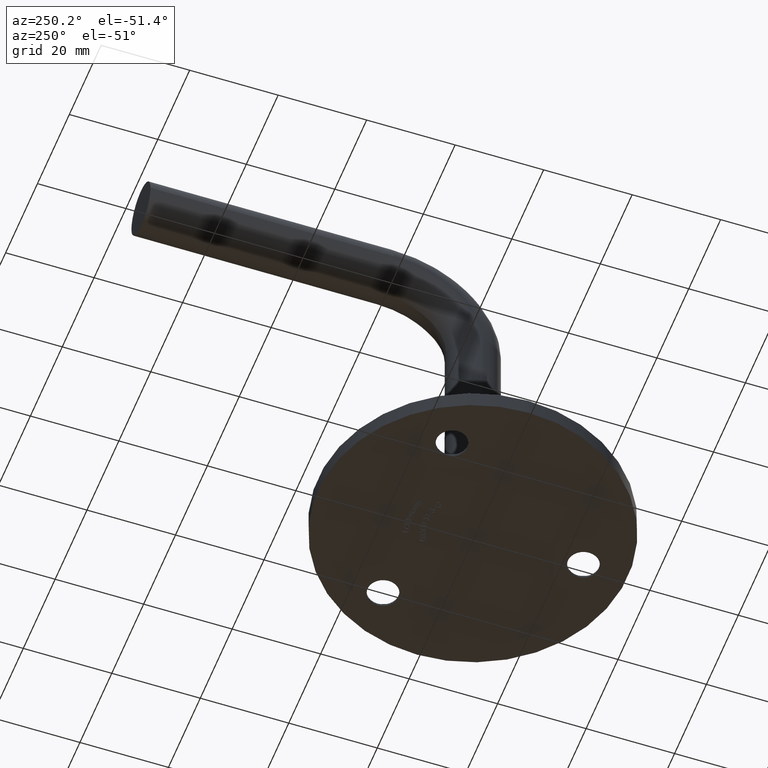
[diagram: clean part render]
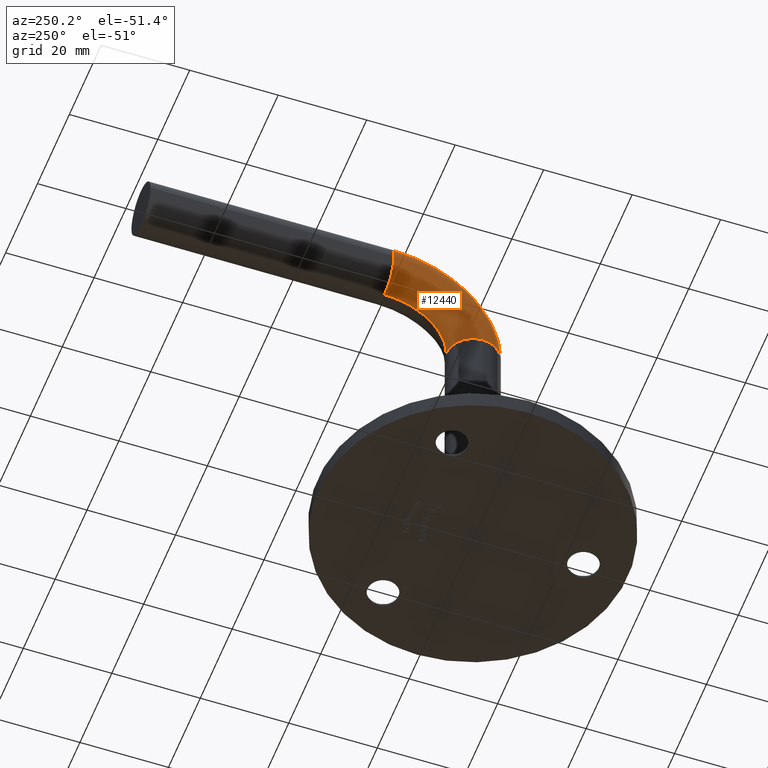
[diagram: same view with one face highlighted and labeled with its STEP entity id]
A machine part, auxiliary view. The second image highlights one B-rep face of the part: STEP entity #12440.
In plain terms, the highlighted toroidal blend (fillet) surface has major radius 20 mm and minor (blend) radius 6 mm.
Its self-contained STEP definition (entity closure, byte-faithful):
#216 = AXIS2_PLACEMENT_3D ( 'NONE', #1449, #242, #7856 ) ;
#231 = DIRECTION ( 'NONE',  ( -1.000000000000000000, 0.0000000000000000000, 0.0000000000000000000 ) ) ;
#242 = DIRECTION ( 'NONE',  ( -1.000000000000000000, -0.0000000000000000000, -0.0000000000000000000 ) ) ;
#280 = AXIS2_PLACEMENT_3D ( 'NONE', #3729, #11340, #12478 ) ;
#484 = DIRECTION ( 'NONE',  ( -1.000000000000000000, 0.0000000000000000000, 0.0000000000000000000 ) ) ;
#1449 = CARTESIAN_POINT ( 'NONE',  ( 7.347880794884120700E-016, 20.00000000000000000, 59.00000000000000000 ) ) ;
#2370 = CARTESIAN_POINT ( 'NONE',  ( 0.0000000000000000000, 0.0000000000000000000, 59.00000000000000000 ) ) ;
#3024 = DIRECTION ( 'NONE',  ( 0.0000000000000000000, 0.0000000000000000000, 1.000000000000000000 ) ) ;
#3602 = DIRECTION ( 'NONE',  ( 0.0000000000000000000, 0.0000000000000000000, -1.000000000000000000 ) ) ;
#3673 = ORIENTED_EDGE ( 'NONE', *, *, #5747, .T. ) ;
#3729 = CARTESIAN_POINT ( 'NONE',  ( 0.0000000000000000000, 20.00000000000000400, 79.00000000000000000 ) ) ;
#3984 = CARTESIAN_POINT ( 'NONE',  ( 0.0000000000000000000, 20.00000000000000400, 79.00000000000000000 ) ) ;
#5112 = EDGE_CURVE ( 'NONE', #6102, #13467, #6775, .T. ) ;
#5616 = CARTESIAN_POINT ( 'NONE',  ( 0.0000000000000000000, 20.00000000000000000, 59.00000000000000000 ) ) ;
#5664 = EDGE_LOOP ( 'NONE', ( #11748, #14597, #3673, #5676, #10198, #10771 ) ) ;
#5676 = ORIENTED_EDGE ( 'NONE', *, *, #5112, .T. ) ;
#5747 = EDGE_CURVE ( 'NONE', #6618, #6102, #9495, .T. ) ;
#5901 = CARTESIAN_POINT ( 'NONE',  ( 0.0000000000000000000, 20.00000000000000000, 59.00000000000000000 ) ) ;
#5976 = AXIS2_PLACEMENT_3D ( 'NONE', #10413, #11624, #14159 ) ;
#6102 = VERTEX_POINT ( 'NONE', #15081 ) ;
#6229 = VERTEX_POINT ( 'NONE', #15408 ) ;
#6618 = VERTEX_POINT ( 'NONE', #14060 ) ;
#6775 = CIRCLE ( 'NONE', #9605, 6.000000000000000900 ) ;
#6793 = CARTESIAN_POINT ( 'NONE',  ( 0.0000000000000000000, -6.000000000000001800, 59.00000000000000000 ) ) ;
#7046 = DIRECTION ( 'NONE',  ( 0.0000000000000000000, 0.0000000000000000000, 1.000000000000000000 ) ) ;
#7156 = CIRCLE ( 'NONE', #13049, 6.000000000000000900 ) ;
#7171 = EDGE_CURVE ( 'NONE', #9195, #6229, #7156, .T. ) ;
#7856 = DIRECTION ( 'NONE',  ( 0.0000000000000000000, 0.0000000000000000000, 1.000000000000000000 ) ) ;
#8267 = DIRECTION ( 'NONE',  ( 0.0000000000000000000, -1.000000000000000000, 1.608122649676636600E-016 ) ) ;
#8836 = AXIS2_PLACEMENT_3D ( 'NONE', #5901, #14634, #7046 ) ;
#9195 = VERTEX_POINT ( 'NONE', #10112 ) ;
#9484 = EDGE_CURVE ( 'NONE', #16065, #9195, #14865, .T. ) ;
#9495 = CIRCLE ( 'NONE', #280, 6.000000000000000900 ) ;
#9605 = AXIS2_PLACEMENT_3D ( 'NONE', #3984, #8267, #484 ) ;
#10112 = CARTESIAN_POINT ( 'NONE',  ( -6.000000000000000900, 0.0000000000000000000, 59.00000000000000000 ) ) ;
#10198 = ORIENTED_EDGE ( 'NONE', *, *, #12953, .F. ) ;
#10251 = FACE_OUTER_BOUND ( 'NONE', #5664, .T. ) ;
#10413 = CARTESIAN_POINT ( 'NONE',  ( 0.0000000000000000000, 0.0000000000000000000, 59.00000000000000000 ) ) ;
#10651 = TOROIDAL_SURFACE ( 'NONE', #13921, 20.00000000000000000, 6.000000000000000900 ) ;
#10771 = ORIENTED_EDGE ( 'NONE', *, *, #7171, .F. ) ;
#11340 = DIRECTION ( 'NONE',  ( 0.0000000000000000000, -1.000000000000000000, 1.608122649676636600E-016 ) ) ;
#11624 = DIRECTION ( 'NONE',  ( 0.0000000000000000000, 0.0000000000000000000, -1.000000000000000000 ) ) ;
#11748 = ORIENTED_EDGE ( 'NONE', *, *, #9484, .F. ) ;
#12440 = ADVANCED_FACE ( 'NONE', ( #10251 ), #10651, .T. ) ;
#12478 = DIRECTION ( 'NONE',  ( -1.000000000000000000, 0.0000000000000000000, 0.0000000000000000000 ) ) ;
#12758 = CARTESIAN_POINT ( 'NONE',  ( 7.347880794884114800E-016, 20.00000000000000400, 73.00000000000000000 ) ) ;
#12942 = CIRCLE ( 'NONE', #216, 13.99999999999999800 ) ;
#12953 = EDGE_CURVE ( 'NONE', #6229, #13467, #12942, .T. ) ;
#13049 = AXIS2_PLACEMENT_3D ( 'NONE', #2370, #3602, #231 ) ;
#13297 = CIRCLE ( 'NONE', #8836, 25.99999999999999600 ) ;
#13467 = VERTEX_POINT ( 'NONE', #12758 ) ;
#13921 = AXIS2_PLACEMENT_3D ( 'NONE', #5616, #15573, #3024 ) ;
#14060 = CARTESIAN_POINT ( 'NONE',  ( 0.0000000000000000000, 20.00000000000000400, 84.99999999999998600 ) ) ;
#14159 = DIRECTION ( 'NONE',  ( -1.000000000000000000, 0.0000000000000000000, 0.0000000000000000000 ) ) ;
#14597 = ORIENTED_EDGE ( 'NONE', *, *, #15525, .T. ) ;
#14634 = DIRECTION ( 'NONE',  ( -1.000000000000000000, -0.0000000000000000000, -0.0000000000000000000 ) ) ;
#14865 = CIRCLE ( 'NONE', #5976, 6.000000000000000900 ) ;
#15081 = CARTESIAN_POINT ( 'NONE',  ( -6.000000000000000900, 20.00000000000000400, 79.00000000000000000 ) ) ;
#15408 = CARTESIAN_POINT ( 'NONE',  ( 7.347880794884119700E-016, 6.000000000000000900, 59.00000000000000000 ) ) ;
#15525 = EDGE_CURVE ( 'NONE', #16065, #6618, #13297, .T. ) ;
#15573 = DIRECTION ( 'NONE',  ( -1.000000000000000000, -0.0000000000000000000, -0.0000000000000000000 ) ) ;
#16065 = VERTEX_POINT ( 'NONE', #6793 ) ;